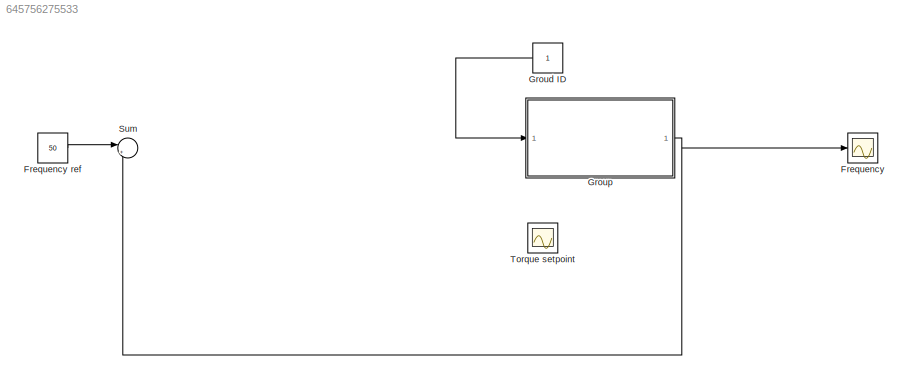
MODEL mdl_645756275533
KIND model
CONFIG AbsTol = 1e-6
CONFIG EnableMultiTasking = off
CONFIG FixedStep = 0.5
CONFIG MaxStep = auto
CONFIG MinStep = auto
CONFIG RelTol = 1e-3
CONFIG SampleTimeConstraint = Unconstrained
CONFIG SolverName = ode4
CONFIG StartTime = 0.0
CONFIG StopTime = Inf
BLOCK [Scope] Frequency
  Floating = off
  NumInputPorts = 1
  ScopeSpecificationString = Simulink.scopes.TimeScopeBlockCfg('CurrentConfiguration', extmgr.ConfigurationSet(extmgr.Configuration('Core','General UI',true),extmgr.Configuration('Core','Source UI',true),extmgr.Configuration('Sources','WiredSimulink',true,'DataLoggingSaveFormat','Array','DataLoggingDecimation','1','DataLoggingDecimateData',true,'DataLoggingVariableName','ScopeData1'),extmgr.Configuration('Visuals','Time Domai...<+1783ch>
BLOCK [Constant] Frequency ref
  Value = 50
BLOCK [Constant] Groud ID
  NameLocation = top
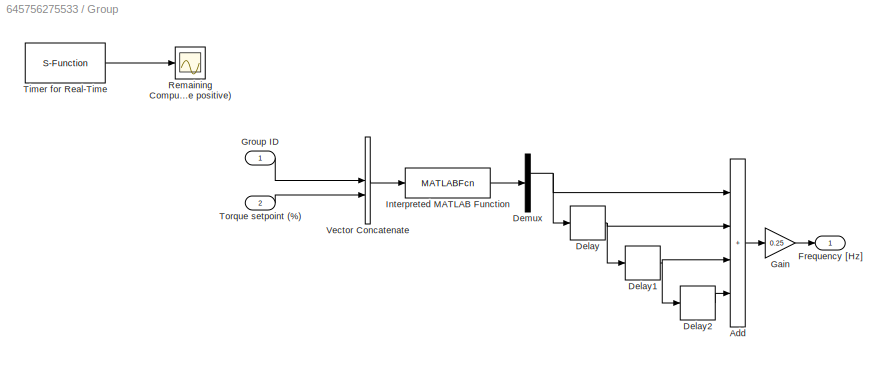
BLOCK [SubSystem] Group
BLOCK [Sum] Group/Add
  IconShape = rectangular
  Inputs = ++++
BLOCK [Delay] Group/Delay
  DelayLength = 1
  InitialCondition = 0
  InputPortMap = u0
BLOCK [Delay] Group/Delay1
  DelayLength = 1
  InitialCondition = 0
  InputPortMap = u0
BLOCK [Delay] Group/Delay2
  DelayLength = 1
  InitialCondition = 0
  InputPortMap = u0
BLOCK [Demux] Group/Demux
  Outputs = 1
BLOCK [Outport] Group/Frequency [Hz]
BLOCK [Gain] Group/Gain
  Gain = 0.25
BLOCK [Inport] Group/Group ID
BLOCK [MATLABFcn] Group/Interpreted MATLAB Function
  MATLABFcn = group_comm
BLOCK [Scope] Group/Remaining Computation Time (must be positive)
  Floating = off
  NumInputPorts = 1
  ScopeSpecificationString = Simulink.scopes.TimeScopeBlockCfg('CurrentConfiguration', extmgr.ConfigurationSet(extmgr.Configuration('Core','General UI',true),extmgr.Configuration('Core','Source UI',true),extmgr.Configuration('Sources','WiredSimulink',true,'DataLoggingVariableName','ScopeData1','DataLoggingSaveFormat','StructureWithTime','DataLoggingLimitDataPoints',true,'DataLoggingDecimation','1','DataLoggingDecimateData',tr...<+1762ch>
BLOCK [S-Function] Group/Timer for Real-Time
  EnableBusSupport = off
  FunctionName = sfun_rttime
  Parameters = 1
  SFcnIsStateOwnerBlock = off
  SFunctionDeploymentMode = off
BLOCK [Inport] Group/Torque setpoint (%)
  Port = 2
BLOCK [Concatenate] Group/Vector Concatenate
BLOCK [Sum] Sum
  Inputs = |+-
BLOCK [Scope] Torque setpoint
  Floating = off
  NumInputPorts = 1
  ScopeSpecificationString = Simulink.scopes.TimeScopeBlockCfg('CurrentConfiguration', extmgr.ConfigurationSet(extmgr.Configuration('Core','General UI',true),extmgr.Configuration('Core','Source UI',true),extmgr.Configuration('Sources','WiredSimulink',true,'DataLoggingSaveFormat','Array','DataLoggingDecimation','1','DataLoggingDecimateData',true,'DataLoggingVariableName','ScopeData1'),extmgr.Configuration('Visuals','Time Domai...<+1772ch>
LINE Frequency ref:1 -> Sum:1
LINE Groud ID:1 -> Group:1
LINE Group/Add:1 -> Group/Gain:1
NET Group/Delay1:1 -> Group/Add:3, Group/Delay2:1
LINE Group/Delay2:1 -> Group/Add:4
NET Group/Delay:1 -> Group/Add:2, Group/Delay1:1
NET Group/Demux:1 -> Group/Add:1, Group/Delay:1
LINE Group/Gain:1 -> Group/Frequency [Hz]:1
LINE Group/Group ID:1 -> Group/Vector Concatenate:1
LINE Group/Interpreted MATLAB Function:1 -> Group/Demux:1
LINE Group/Timer for Real-Time:1 -> Group/Remaining Computation Time (must be positive):1
LINE Group/Torque setpoint (%):1 -> Group/Vector Concatenate:2
LINE Group/Vector Concatenate:1 -> Group/Interpreted MATLAB Function:1
NET Group:1 -> Frequency:1, Sum:2
note: NET lines group one-source signal fan-out (src -> all destinations, sorted); 1:1 wires keep LINE
